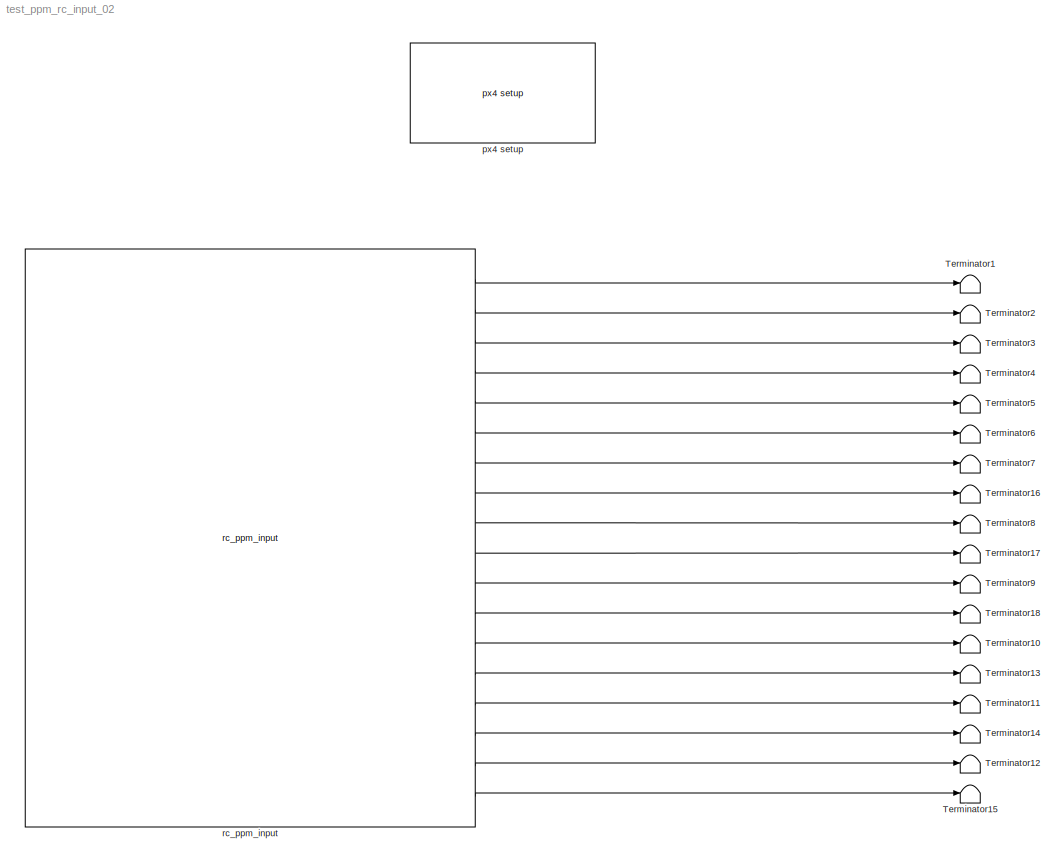
MODEL test_ppm_rc_input_02
KIND model
CONFIG InitFcn = px4_ap1_mdl_callback('check_model');
BLOCK [Terminator] Terminator1
  SID = 1
BLOCK [Terminator] Terminator10
  SID = 2
BLOCK [Terminator] Terminator11
  SID = 3
BLOCK [Terminator] Terminator12
  SID = 4
BLOCK [Terminator] Terminator13
  SID = 5
BLOCK [Terminator] Terminator14
  SID = 6
BLOCK [Terminator] Terminator15
  SID = 7
BLOCK [Terminator] Terminator16
  SID = 8
BLOCK [Terminator] Terminator17
  SID = 9
BLOCK [Terminator] Terminator18
  SID = 10
BLOCK [Terminator] Terminator2
  SID = 11
BLOCK [Terminator] Terminator3
  SID = 12
BLOCK [Terminator] Terminator4
  SID = 13
BLOCK [Terminator] Terminator5
  SID = 14
BLOCK [Terminator] Terminator6
  SID = 15
BLOCK [Terminator] Terminator7
  SID = 16
BLOCK [Terminator] Terminator8
  SID = 17
BLOCK [Terminator] Terminator9
  SID = 18
BLOCK [Reference] px4 setup  REF=px4_ap1_px4setup_lib/px4 setup
  Ports = [0, 1]
  SID = 19
  SampleTimeValue = 0.3
  SourceBlock = px4_ap1_px4setup_lib/px4 setup
  SourceType = PX4_Target_Setup
  cbBuild = on
  cbPort = COM0
  cbUpload = off
  cpuLoad = on
  debugmode = on
BLOCK [Reference] rc_ppm_input  REF=px4_ap1_rc_ppm_input_lib/rc_ppm_input
  Description = Setup for PX4 native software
  Ports = [0, 18]
  SID = 20
  SourceBlock = px4_ap1_rc_ppm_input_lib/rc_ppm_input
  SourceType = RC_PPM_Input
  ch1 = on
  ch10 = on
  ch11 = on
  ch12 = on
  ch13 = on
  ch14 = on
  ch15 = on
  ch16 = on
  ch17 = on
  ch18 = on
  ch2 = on
  ch3 = on
  ch4 = on
  ch5 = on
  ch6 = on
  ch7 = on
  ch8 = on
  ch9 = on
LINE rc_ppm_input:1 -> Terminator1:1
LINE rc_ppm_input:10 -> Terminator17:1
LINE rc_ppm_input:11 -> Terminator9:1
LINE rc_ppm_input:12 -> Terminator18:1
LINE rc_ppm_input:13 -> Terminator10:1
LINE rc_ppm_input:14 -> Terminator13:1
LINE rc_ppm_input:15 -> Terminator11:1
LINE rc_ppm_input:16 -> Terminator14:1
LINE rc_ppm_input:17 -> Terminator12:1
LINE rc_ppm_input:18 -> Terminator15:1
LINE rc_ppm_input:2 -> Terminator2:1
LINE rc_ppm_input:3 -> Terminator3:1
LINE rc_ppm_input:4 -> Terminator4:1
LINE rc_ppm_input:5 -> Terminator5:1
LINE rc_ppm_input:6 -> Terminator6:1
LINE rc_ppm_input:7 -> Terminator7:1
LINE rc_ppm_input:8 -> Terminator16:1
LINE rc_ppm_input:9 -> Terminator8:1
